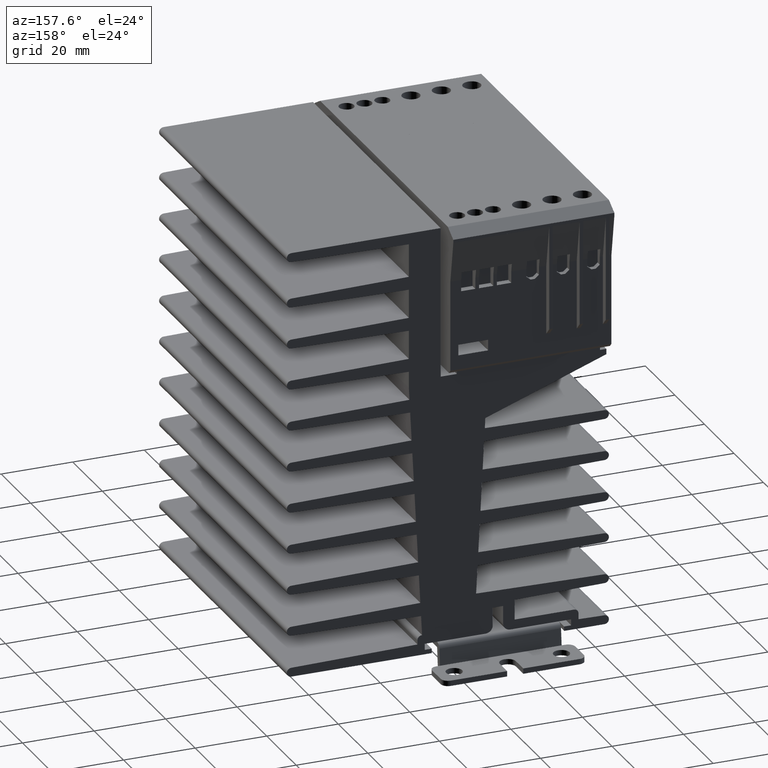
[diagram: clean part render]
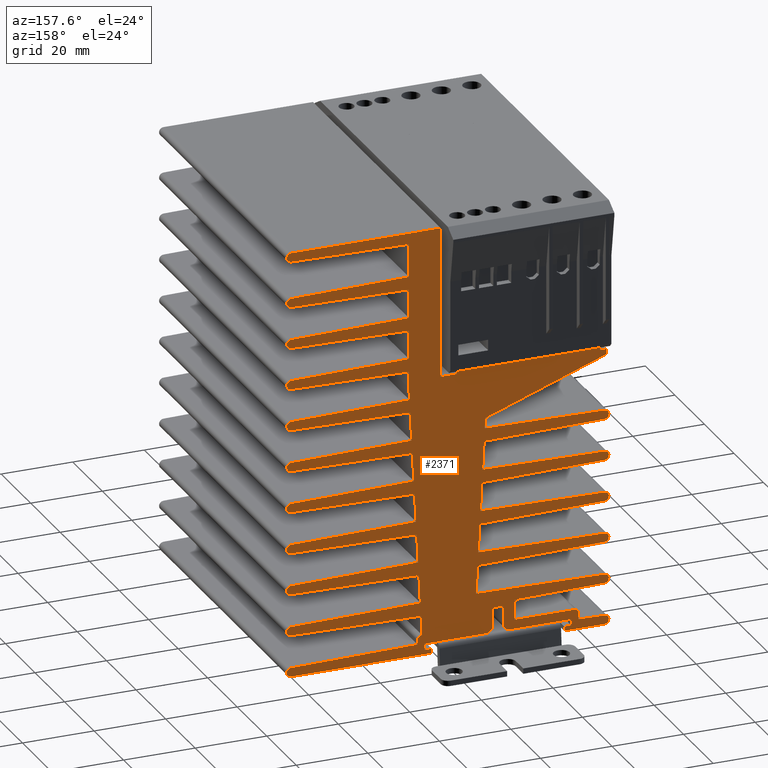
[diagram: same view with one face highlighted and labeled with its STEP entity id]
A machine part, auxiliary view. The second image highlights one B-rep face of the part: STEP entity #2371.
In plain terms, the highlighted planar face has unit normal (0, 1, 0).
Its self-contained STEP definition (entity closure, byte-faithful):
#7 = ORIENTED_EDGE ( 'NONE', *, *, #124, .F. ) ;
#12 = EDGE_CURVE ( 'NONE', #74, #13512, #8347, .T. ) ;
#66 = CARTESIAN_POINT ( 'NONE',  ( 1.252439988956242312, 1.704724409448818978, -1.297295604719318929 ) ) ;
#68 = CARTESIAN_POINT ( 'NONE',  ( -0.8366141732283465249, 1.704724409448818978, -0.7677165354330708347 ) ) ;
#74 = VERTEX_POINT ( 'NONE', #9982 ) ;
#79 = EDGE_CURVE ( 'NONE', #11851, #5127, #14053, .T. ) ;
#114 = DIRECTION ( 'NONE',  ( 1.000000000000000000, 0.000000000000000000, 0.000000000000000000 ) ) ;
#124 = EDGE_CURVE ( 'NONE', #1903, #3368, #3008, .T. ) ;
#132 = DIRECTION ( 'NONE',  ( 0.05233595624294399423, 0.000000000000000000, 0.9986295347545738332 ) ) ;
#204 = LINE ( 'NONE', #7888, #4513 ) ;
#226 = LINE ( 'NONE', #10785, #7547 ) ;
#249 = CARTESIAN_POINT ( 'NONE',  ( -0.7874015748031496509, 1.704724409448818978, -8.236254873970098290E-17 ) ) ;
#274 = ORIENTED_EDGE ( 'NONE', *, *, #5914, .F. ) ;
#291 = EDGE_CURVE ( 'NONE', #5926, #11945, #1397, .T. ) ;
#296 = AXIS2_PLACEMENT_3D ( 'NONE', #2073, #10631, #6410 ) ;
#310 = EDGE_CURVE ( 'NONE', #7832, #7668, #13555, .T. ) ;
#311 = EDGE_CURVE ( 'NONE', #999, #9655, #3678, .T. ) ;
#313 = ORIENTED_EDGE ( 'NONE', *, *, #311, .F. ) ;
#315 = CARTESIAN_POINT ( 'NONE',  ( 1.139763779527559029, 1.704724409448818978, -0.7581509940322579411 ) ) ;
#320 = CARTESIAN_POINT ( 'NONE',  ( 0.7657480314960629642, 1.704724409448818978, -0.6905271042270414439 ) ) ;
#325 = ORIENTED_EDGE ( 'NONE', *, *, #13407, .T. ) ;
#348 = CARTESIAN_POINT ( 'NONE',  ( -0.8374730514978977469, 1.704724409448818978, -0.7185114323249803814 ) ) ;
#362 = VERTEX_POINT ( 'NONE', #3979 ) ;
#377 = LINE ( 'NONE', #13423, #4142 ) ;
#388 = EDGE_CURVE ( 'NONE', #7668, #3161, #9363, .T. ) ;
#390 = EDGE_CURVE ( 'NONE', #8518, #10667, #1918, .T. ) ;
#401 = DIRECTION ( 'NONE',  ( 0.000000000000000000, 0.000000000000000000, -1.000000000000000000 ) ) ;
#432 = ORIENTED_EDGE ( 'NONE', *, *, #13729, .F. ) ;
#449 = CARTESIAN_POINT ( 'NONE',  ( 1.062992125984252079, 1.704724409448818978, -3.100393700787401841 ) ) ;
#455 = DIRECTION ( 'NONE',  ( 0.9998476951563912696, 0.000000000000000000, 0.01745240643728300511 ) ) ;
#456 = ORIENTED_EDGE ( 'NONE', *, *, #6217, .T. ) ;
#469 = CARTESIAN_POINT ( 'NONE',  ( 2.609126594804984212, 1.704724409448818978, -1.175204345710807008 ) ) ;
#514 = VERTEX_POINT ( 'NONE', #66 ) ;
#515 = AXIS2_PLACEMENT_3D ( 'NONE', #9387, #765, #13884 ) ;
#572 = ORIENTED_EDGE ( 'NONE', *, *, #9872, .F. ) ;
#639 = DIRECTION ( 'NONE',  ( -1.000000000000000000, 0.000000000000000000, 0.000000000000000000 ) ) ;
#667 = CARTESIAN_POINT ( 'NONE',  ( -0.8374730514978977469, 1.704724409448818978, -2.187000378698641612 ) ) ;
#681 = EDGE_CURVE ( 'NONE', #3161, #362, #2546, .T. ) ;
#698 = VECTOR ( 'NONE', #3703, 39.37007874015748854 ) ;
#710 = CARTESIAN_POINT ( 'NONE',  ( 2.609126594804984212, 1.704724409448818978, -0.3602287251553331071 ) ) ;
#721 = VECTOR ( 'NONE', #12270, 39.37007874015748143 ) ;
#722 = ORIENTED_EDGE ( 'NONE', *, *, #4821, .F. ) ;
#738 = EDGE_CURVE ( 'NONE', #12546, #1558, #6640, .T. ) ;
#762 = LINE ( 'NONE', #7519, #8127 ) ;
#765 = DIRECTION ( 'NONE',  ( -0.000000000000000000, -1.000000000000000000, -0.000000000000000000 ) ) ;
#779 = CARTESIAN_POINT ( 'NONE',  ( 2.608267716535433323, 1.704724409448818978, -1.681102362204724532 ) ) ;
#807 = VERTEX_POINT ( 'NONE', #3173 ) ;
#809 = VERTEX_POINT ( 'NONE', #10675 ) ;
#814 = EDGE_CURVE ( 'NONE', #1843, #3648, #11146, .T. ) ;
#822 = ORIENTED_EDGE ( 'NONE', *, *, #9463, .F. ) ;
#825 = ORIENTED_EDGE ( 'NONE', *, *, #1716, .T. ) ;
#833 = DIRECTION ( 'NONE',  ( 0.05233595624294399423, 0.000000000000000000, -0.9986295347545738332 ) ) ;
#840 = VERTEX_POINT ( 'NONE', #4492 ) ;
#841 = EDGE_CURVE ( 'NONE', #8518, #5127, #1289, .T. ) ;
#893 = EDGE_CURVE ( 'NONE', #12748, #809, #226, .T. ) ;
#908 = ORIENTED_EDGE ( 'NONE', *, *, #5056, .F. ) ;
#933 = CARTESIAN_POINT ( 'NONE',  ( 0.5349089800480173462, 1.704724409448818978, -1.754262482779771481 ) ) ;
#968 = CIRCLE ( 'NONE', #3927, 0.04921259842519686012 ) ;
#989 = DIRECTION ( 'NONE',  ( 0.000000000000000000, 0.000000000000000000, -1.000000000000000000 ) ) ;
#997 = EDGE_CURVE ( 'NONE', #4551, #10103, #3846, .T. ) ;
#999 = VERTEX_POINT ( 'NONE', #1780 ) ;
#1010 = DIRECTION ( 'NONE',  ( -0.9998476951563912696, 0.000000000000000000, -0.01745240643727900484 ) ) ;
#1013 = CARTESIAN_POINT ( 'NONE',  ( 0.5033352827647064043, 1.704724409448818978, -1.151800449179964492 ) ) ;
#1023 = LINE ( 'NONE', #5360, #5356 ) ;
#1038 = PLANE ( 'NONE',  #2172 ) ;
#1042 = CARTESIAN_POINT ( 'NONE',  ( 1.139763779527559029, 1.704724409448818978, -3.051181102362204633 ) ) ;
#1057 = DIRECTION ( 'NONE',  ( -0.9998476951563912696, 0.000000000000000000, -0.01745240643727900484 ) ) ;
#1081 = EDGE_CURVE ( 'NONE', #10527, #12207, #5119, .T. ) ;
#1082 = LINE ( 'NONE', #7632, #1381 ) ;
#1086 = EDGE_CURVE ( 'NONE', #5178, #4321, #10691, .T. ) ;
#1135 = DIRECTION ( 'NONE',  ( 0.000000000000000000, -1.000000000000000000, 0.000000000000000000 ) ) ;
#1167 = VERTEX_POINT ( 'NONE', #1255 ) ;
#1172 = ORIENTED_EDGE ( 'NONE', *, *, #6489, .F. ) ;
#1173 = DIRECTION ( 'NONE',  ( 0.000000000000000000, 0.000000000000000000, -1.000000000000000000 ) ) ;
#1195 = VECTOR ( 'NONE', #10136, 39.37007874015748143 ) ;
#1201 = DIRECTION ( 'NONE',  ( -0.9998476951563912696, 0.000000000000000000, 0.01745240643728400431 ) ) ;
#1216 = VERTEX_POINT ( 'NONE', #14093 ) ;
#1218 = DIRECTION ( 'NONE',  ( -1.000000000000000000, 0.000000000000000000, 0.000000000000000000 ) ) ;
#1222 = CARTESIAN_POINT ( 'NONE',  ( 1.062992125984252079, 1.704724409448818978, -3.051181102362204633 ) ) ;
#1224 = CIRCLE ( 'NONE', #8962, 0.04921259842519689481 ) ;
#1237 = DIRECTION ( 'NONE',  ( 0.000000000000000000, 0.000000000000000000, 1.000000000000000000 ) ) ;
#1250 = VERTEX_POINT ( 'NONE', #3461 ) ;
#1255 = CARTESIAN_POINT ( 'NONE',  ( -0.3937007874015748254, 1.704724409448818978, -3.051181102362204633 ) ) ;
#1259 = LINE ( 'NONE', #14097, #2305 ) ;
#1289 = LINE ( 'NONE', #7699, #13713 ) ;
#1300 = VERTEX_POINT ( 'NONE', #12133 ) ;
#1303 = CIRCLE ( 'NONE', #8358, 0.04921259842519689481 ) ;
#1306 = CARTESIAN_POINT ( 'NONE',  ( 2.608267716535433323, 1.704724409448818978, 0.1456692913385826960 ) ) ;
#1314 = VERTEX_POINT ( 'NONE', #5783 ) ;
#1315 = LINE ( 'NONE', #12301, #11200 ) ;
#1354 = DIRECTION ( 'NONE',  ( 0.05233595624294399423, 0.000000000000000000, -0.9986295347545738332 ) ) ;
#1373 = CARTESIAN_POINT ( 'NONE',  ( 1.314960629921259949, 1.704724409448818978, 0.2174641453916082989 ) ) ;
#1381 = VECTOR ( 'NONE', #13134, 39.37007874015748143 ) ;
#1396 = DIRECTION ( 'NONE',  ( -0.9998476951563912696, 0.000000000000000000, -0.01745240643727800564 ) ) ;
#1397 = CIRCLE ( 'NONE', #7312, 0.07874015748031502893 ) ;
#1409 = EDGE_CURVE ( 'NONE', #8111, #2981, #11206, .T. ) ;
#1418 = ORIENTED_EDGE ( 'NONE', *, *, #841, .T. ) ;
#1429 = CARTESIAN_POINT ( 'NONE',  ( -0.8366141732283465249, 1.704724409448818978, -2.594488188976378229 ) ) ;
#1430 = CARTESIAN_POINT ( 'NONE',  ( 0.4704724409448819422, 1.704724409448818978, -2.905511811023622215 ) ) ;
#1454 = DIRECTION ( 'NONE',  ( 0.05233595624294399423, 0.000000000000000000, 0.9986295347545738332 ) ) ;
#1473 = EDGE_CURVE ( 'NONE', #6554, #1843, #9457, .T. ) ;
#1478 = LINE ( 'NONE', #13390, #11914 ) ;
#1534 = CIRCLE ( 'NONE', #9496, 0.04921259842519686012 ) ;
#1545 = VERTEX_POINT ( 'NONE', #1013 ) ;
#1558 = VERTEX_POINT ( 'NONE', #8424 ) ;
#1577 = ORIENTED_EDGE ( 'NONE', *, *, #4021, .F. ) ;
#1584 = ORIENTED_EDGE ( 'NONE', *, *, #9689, .F. ) ;
#1590 = CARTESIAN_POINT ( 'NONE',  ( 1.169394928015017765, 1.704724409448818978, -2.881889763779527769 ) ) ;
#1629 = DIRECTION ( 'NONE',  ( 0.000000000000000000, 0.000000000000000000, -1.000000000000000000 ) ) ;
#1670 = EDGE_CURVE ( 'NONE', #7237, #5981, #8074, .T. ) ;
#1698 = VERTEX_POINT ( 'NONE', #8352 ) ;
#1708 = DIRECTION ( 'NONE',  ( 0.000000000000000000, -1.000000000000000000, 0.000000000000000000 ) ) ;
#1716 = EDGE_CURVE ( 'NONE', #8341, #10791, #9216, .T. ) ;
#1734 = DIRECTION ( 'NONE',  ( -0.9998476951563912696, 0.000000000000000000, 0.01745240643728300511 ) ) ;
#1741 = ORIENTED_EDGE ( 'NONE', *, *, #1081, .F. ) ;
#1752 = DIRECTION ( 'NONE',  ( 0.9998476951563911586, 0.000000000000000000, -0.01745240643728800112 ) ) ;
#1768 = VERTEX_POINT ( 'NONE', #7447 ) ;
#1780 = CARTESIAN_POINT ( 'NONE',  ( -0.5019685039370078705, 1.704724409448818978, -2.881889763779527769 ) ) ;
#1811 = EDGE_CURVE ( 'NONE', #1216, #1250, #4318, .T. ) ;
#1831 = CARTESIAN_POINT ( 'NONE',  ( 2.609126594804984212, 1.704724409448818978, -1.730307465312812987 ) ) ;
#1843 = VERTEX_POINT ( 'NONE', #1919 ) ;
#1860 = VECTOR ( 'NONE', #9076, 39.37007874015748143 ) ;
#1876 = VECTOR ( 'NONE', #8416, 39.37007874015748143 ) ;
#1902 = ORIENTED_EDGE ( 'NONE', *, *, #9339, .T. ) ;
#1903 = VERTEX_POINT ( 'NONE', #4134 ) ;
#1918 = LINE ( 'NONE', #6250, #6617 ) ;
#1919 = CARTESIAN_POINT ( 'NONE',  ( 0.4794228959615117747, 1.704724409448818978, -0.6955249280583759575 ) ) ;
#1946 = VERTEX_POINT ( 'NONE', #933 ) ;
#1948 = VERTEX_POINT ( 'NONE', #6549 ) ;
#1964 = EDGE_CURVE ( 'NONE', #9435, #13647, #6483, .T. ) ;
#1982 = ORIENTED_EDGE ( 'NONE', *, *, #9838, .F. ) ;
#1992 = DIRECTION ( 'NONE',  ( -1.000000000000000000, 0.000000000000000000, 0.000000000000000000 ) ) ;
#2013 = CARTESIAN_POINT ( 'NONE',  ( 0.1475173550843781600, 1.704724409448818978, -2.617756568674689088 ) ) ;
#2032 = VERTEX_POINT ( 'NONE', #6763 ) ;
#2051 = ORIENTED_EDGE ( 'NONE', *, *, #3758, .F. ) ;
#2067 = EDGE_CURVE ( 'NONE', #809, #6375, #5563, .T. ) ;
#2073 = CARTESIAN_POINT ( 'NONE',  ( 2.608267716535433323, 1.704724409448818978, -0.7677165354330708347 ) ) ;
#2075 = CARTESIAN_POINT ( 'NONE',  ( -0.8366141732283465249, 1.704724409448818978, -1.681102362204724532 ) ) ;
#2098 = LINE ( 'NONE', #6435, #6779 ) ;
#2103 = ORIENTED_EDGE ( 'NONE', *, *, #8644, .F. ) ;
#2172 = AXIS2_PLACEMENT_3D ( 'NONE', #7586, #2250, #10881 ) ;
#2175 = VERTEX_POINT ( 'NONE', #13624 ) ;
#2209 = DIRECTION ( 'NONE',  ( 0.000000000000000000, 0.000000000000000000, -1.000000000000000000 ) ) ;
#2250 = DIRECTION ( 'NONE',  ( 0.000000000000000000, 1.000000000000000000, 0.000000000000000000 ) ) ;
#2256 = CARTESIAN_POINT ( 'NONE',  ( -0.3937007874015748254, 1.704724409448818978, -3.100393700787401841 ) ) ;
#2305 = VECTOR ( 'NONE', #11029, 39.37007874015748854 ) ;
#2341 = LINE ( 'NONE', #4332, #2367 ) ;
#2367 = VECTOR ( 'NONE', #8751, 39.37007874015748854 ) ;
#2371 = ADVANCED_FACE ( 'NONE', ( #10812 ), #1038, .T. ) ;
#2378 = CARTESIAN_POINT ( 'NONE',  ( 1.169394928015017765, 1.704724409448818978, -2.881889763779527769 ) ) ;
#2380 = DIRECTION ( 'NONE',  ( -1.000000000000000000, 0.000000000000000000, 0.000000000000000000 ) ) ;
#2411 = DIRECTION ( 'NONE',  ( 0.000000000000000000, 0.000000000000000000, -1.000000000000000000 ) ) ;
#2439 = ORIENTED_EDGE ( 'NONE', *, *, #13051, .T. ) ;
#2446 = VERTEX_POINT ( 'NONE', #11301 ) ;
#2451 = CARTESIAN_POINT ( 'NONE',  ( 0.4704724409448819422, 1.704724409448818978, -2.984251968503937480 ) ) ;
#2471 = CARTESIAN_POINT ( 'NONE',  ( 1.314960629921259949, 1.704724409448818978, -0.1043307086614173318 ) ) ;
#2481 = CARTESIAN_POINT ( 'NONE',  ( 0.1988188976377952832, 1.704724409448818978, -2.905511811023622215 ) ) ;
#2486 = ORIENTED_EDGE ( 'NONE', *, *, #13969, .F. ) ;
#2500 = ORIENTED_EDGE ( 'NONE', *, *, #5245, .F. ) ;
#2527 = EDGE_CURVE ( 'NONE', #13403, #999, #11155, .T. ) ;
#2529 = LINE ( 'NONE', #13092, #12945 ) ;
#2546 = LINE ( 'NONE', #6894, #9599 ) ;
#2560 = ORIENTED_EDGE ( 'NONE', *, *, #10714, .F. ) ;
#2561 = LINE ( 'NONE', #5774, #8941 ) ;
#2585 = LINE ( 'NONE', #10219, #13790 ) ;
#2648 = ORIENTED_EDGE ( 'NONE', *, *, #12711, .F. ) ;
#2666 = DIRECTION ( 'NONE',  ( -0.9998476951563912696, 0.000000000000000000, 0.01745240643728400431 ) ) ;
#2667 = CARTESIAN_POINT ( 'NONE',  ( 0.3917322834645669549, 1.704724409448818978, -2.708661417322834719 ) ) ;
#2677 = ORIENTED_EDGE ( 'NONE', *, *, #79, .F. ) ;
#2679 = VERTEX_POINT ( 'NONE', #6639 ) ;
#2691 = CIRCLE ( 'NONE', #4942, 0.04921259842519689481 ) ;
#2693 = VERTEX_POINT ( 'NONE', #8856 ) ;
#2694 = LINE ( 'NONE', #3555, #12090 ) ;
#2711 = CIRCLE ( 'NONE', #9313, 0.04921259842519689481 ) ;
#2727 = CARTESIAN_POINT ( 'NONE',  ( -0.8366141732283465249, 1.704724409448818978, -2.137795275590551380 ) ) ;
#2729 = LINE ( 'NONE', #9287, #10260 ) ;
#2753 = EDGE_CURVE ( 'NONE', #6393, #4321, #1023, .T. ) ;
#2774 = CARTESIAN_POINT ( 'NONE',  ( -0.8374730514978977469, 1.704724409448818978, -1.730307465312812987 ) ) ;
#2787 = CIRCLE ( 'NONE', #296, 0.04921259842519689481 ) ;
#2797 = VECTOR ( 'NONE', #9747, 39.37007874015748143 ) ;
#2834 = AXIS2_PLACEMENT_3D ( 'NONE', #1429, #4630, #10983 ) ;
#2884 = ORIENTED_EDGE ( 'NONE', *, *, #10002, .F. ) ;
#2907 = EDGE_CURVE ( 'NONE', #1768, #1300, #2585, .T. ) ;
#2947 = ORIENTED_EDGE ( 'NONE', *, *, #14047, .F. ) ;
#2981 = VERTEX_POINT ( 'NONE', #8209 ) ;
#2991 = AXIS2_PLACEMENT_3D ( 'NONE', #3162, #8791, #12086 ) ;
#3008 = CIRCLE ( 'NONE', #10762, 0.04921259842519689481 ) ;
#3017 = LINE ( 'NONE', #7434, #13865 ) ;
#3030 = CARTESIAN_POINT ( 'NONE',  ( 2.609126594804984212, 1.704724409448818978, 0.09646418823049350555 ) ) ;
#3037 = ORIENTED_EDGE ( 'NONE', *, *, #4743, .F. ) ;
#3085 = CARTESIAN_POINT ( 'NONE',  ( -0.8582677165354331006, 1.704724409448818978, -0.09842519685039370636 ) ) ;
#3091 = CARTESIAN_POINT ( 'NONE',  ( -0.8374730514978977469, 1.704724409448818978, -1.730307465312812987 ) ) ;
#3096 = DIRECTION ( 'NONE',  ( -0.9998476951563912696, 0.000000000000000000, 0.01745240643728400431 ) ) ;
#3097 = DIRECTION ( 'NONE',  ( -0.9998476951563912696, 0.000000000000000000, -0.01745240643727900484 ) ) ;
#3139 = CARTESIAN_POINT ( 'NONE',  ( 0.9645669291338583307, 1.704724409448818978, -1.759013361055431046 ) ) ;
#3161 = VERTEX_POINT ( 'NONE', #8696 ) ;
#3162 = CARTESIAN_POINT ( 'NONE',  ( 2.608267716535433323, 1.704724409448818978, -1.224409448818897683 ) ) ;
#3173 = CARTESIAN_POINT ( 'NONE',  ( 1.283984996723783523, 1.704724409448818978, -0.6953809996913896674 ) ) ;
#3186 = ORIENTED_EDGE ( 'NONE', *, *, #681, .F. ) ;
#3257 = CARTESIAN_POINT ( 'NONE',  ( 1.169394928015017765, 1.704724409448818978, -2.881889763779527769 ) ) ;
#3268 = DIRECTION ( 'NONE',  ( 0.000000000000000000, 0.000000000000000000, 1.000000000000000000 ) ) ;
#3339 = CARTESIAN_POINT ( 'NONE',  ( 0.2775590551181102428, 1.704724409448818978, -2.905511811023622215 ) ) ;
#3347 = CARTESIAN_POINT ( 'NONE',  ( 0.9645669291338583307, 1.704724409448818978, -0.03937007874015747977 ) ) ;
#3368 = VERTEX_POINT ( 'NONE', #2774 ) ;
#3401 = CARTESIAN_POINT ( 'NONE',  ( 2.609126594804984212, 1.704724409448818978, -1.631897259096634079 ) ) ;
#3453 = VECTOR ( 'NONE', #8151, 39.37007874015748143 ) ;
#3461 = CARTESIAN_POINT ( 'NONE',  ( 2.609126594804984212, 1.704724409448818978, 1.009850015002147661 ) ) ;
#3468 = VERTEX_POINT ( 'NONE', #11688 ) ;
#3505 = EDGE_LOOP ( 'NONE', ( #12427, #12737, #3037, #7621, #5309, #2500, #9212, #12083, #13890, #1577, #1982, #4188, #822, #9663, #13701, #5905, #5110, #13744, #4587, #11011, #12209, #4962, #2884, #13726, #2051, #2486, #12958, #2560, #3186, #13278, #11346, #8380, #13822, #6367, #8989, #12279, #2439, #908, #825, #8396, #5326, #8042, #12126, #7902, #325, #10065, #6975, #1172, #9784, #2103, #572, #9980, #456, #7672, #13222, #432, #6244, #7854, #8256, #313, #13842, #5023, #6097, #4465, #3924, #2648, #10231, #5765, #8765, #3909, #11101, #7, #4695, #12363, #6954, #10438, #274, #13981, #2947, #722, #9903, #4800, #9258, #3988, #5472, #1902, #13864, #1418, #2677, #13119, #1741, #9203, #6993, #9800, #1584 ) ) ;
#3516 = EDGE_CURVE ( 'NONE', #12207, #11851, #4329, .T. ) ;
#3555 = CARTESIAN_POINT ( 'NONE',  ( 0.9645669291338583307, 1.704724409448818978, -2.672399187827082745 ) ) ;
#3580 = EDGE_CURVE ( 'NONE', #3468, #13404, #12439, .T. ) ;
#3621 = VECTOR ( 'NONE', #1454, 39.37007874015748143 ) ;
#3624 = CARTESIAN_POINT ( 'NONE',  ( 0.5272476695679015890, 1.704724409448818978, -1.608075970301553248 ) ) ;
#3628 = CARTESIAN_POINT ( 'NONE',  ( -0.8374730514978977469, 1.704724409448818978, -2.643693292084468460 ) ) ;
#3648 = VERTEX_POINT ( 'NONE', #348 ) ;
#3658 = DIRECTION ( 'NONE',  ( 0.000000000000000000, 0.000000000000000000, -1.000000000000000000 ) ) ;
#3678 = CIRCLE ( 'NONE', #10049, 0.04921259842519689481 ) ;
#3694 = DIRECTION ( 'NONE',  ( -0.9998476951563912696, 0.000000000000000000, 0.01745240643728400431 ) ) ;
#3703 = DIRECTION ( 'NONE',  ( 0.9998476951563911586, 0.000000000000000000, -0.01745240643728800112 ) ) ;
#3733 = LINE ( 'NONE', #11501, #7967 ) ;
#3746 = CARTESIAN_POINT ( 'NONE',  ( 1.204527636828033321, 1.704724409448818978, -2.211517744708236144 ) ) ;
#3758 = EDGE_CURVE ( 'NONE', #5999, #5556, #10181, .T. ) ;
#3846 = LINE ( 'NONE', #710, #4830 ) ;
#3869 = EDGE_CURVE ( 'NONE', #13404, #10791, #4897, .T. ) ;
#3909 = ORIENTED_EDGE ( 'NONE', *, *, #7614, .F. ) ;
#3924 = ORIENTED_EDGE ( 'NONE', *, *, #893, .F. ) ;
#3927 = AXIS2_PLACEMENT_3D ( 'NONE', #9995, #8925, #13286 ) ;
#3941 = CARTESIAN_POINT ( 'NONE',  ( 1.169394928015017765, 1.704724409448818978, -2.881889763779527769 ) ) ;
#3952 = CARTESIAN_POINT ( 'NONE',  ( 1.180571460763929270, 1.704724409448818978, -2.668628814702692864 ) ) ;
#3966 = CARTESIAN_POINT ( 'NONE',  ( -0.8374730514978977469, 1.704724409448818978, -1.273614551926986360 ) ) ;
#3979 = CARTESIAN_POINT ( 'NONE',  ( 1.212247836314200855, 1.704724409448818978, -2.064207563056153827 ) ) ;
#3988 = ORIENTED_EDGE ( 'NONE', *, *, #9019, .T. ) ;
#4021 = EDGE_CURVE ( 'NONE', #1314, #5096, #8452, .T. ) ;
#4034 = CARTESIAN_POINT ( 'NONE',  ( 0.4735341752582031272, 1.704724409448818978, -0.5831614434026968219 ) ) ;
#4047 = CARTESIAN_POINT ( 'NONE',  ( 2.608267716535433323, 1.704724409448818978, -2.137795275590551380 ) ) ;
#4107 = DIRECTION ( 'NONE',  ( 0.9998476951563912696, 0.000000000000000000, 0.01745240643728300511 ) ) ;
#4108 = VECTOR ( 'NONE', #2209, 39.37007874015748143 ) ;
#4134 = CARTESIAN_POINT ( 'NONE',  ( -0.8374730514978977469, 1.704724409448818978, -1.631897259096634079 ) ) ;
#4142 = VECTOR ( 'NONE', #11212, 39.37007874015748143 ) ;
#4144 = LINE ( 'NONE', #2013, #12740 ) ;
#4188 = ORIENTED_EDGE ( 'NONE', *, *, #12415, .F. ) ;
#4195 = VECTOR ( 'NONE', #9629, 39.37007874015748854 ) ;
#4196 = DIRECTION ( 'NONE',  ( 0.000000000000000000, 0.000000000000000000, 1.000000000000000000 ) ) ;
#4219 = CARTESIAN_POINT ( 'NONE',  ( 0.9645669291338583307, 1.704724409448818978, 1.614173228346456712 ) ) ;
#4241 = CARTESIAN_POINT ( 'NONE',  ( 2.608267716535433323, 1.704724409448818978, 1.059055118110236338 ) ) ;
#4296 = CARTESIAN_POINT ( 'NONE',  ( -0.8366141732283465249, 1.704724409448818978, -3.100393700787401841 ) ) ;
#4318 = LINE ( 'NONE', #4394, #9623 ) ;
#4321 = VERTEX_POINT ( 'NONE', #1222 ) ;
#4329 = LINE ( 'NONE', #8748, #9012 ) ;
#4332 = CARTESIAN_POINT ( 'NONE',  ( -0.8374730514978977469, 1.704724409448818978, -0.8169216385411594006 ) ) ;
#4360 = AXIS2_PLACEMENT_3D ( 'NONE', #7797, #5514, #1173 ) ;
#4370 = LINE ( 'NONE', #4296, #13757 ) ;
#4376 = VECTOR ( 'NONE', #13692, 39.37007874015748143 ) ;
#4392 = DIRECTION ( 'NONE',  ( 0.05233595624294399423, 0.000000000000000000, -0.9986295347545738332 ) ) ;
#4394 = CARTESIAN_POINT ( 'NONE',  ( 2.609126594804984212, 1.704724409448818978, 1.009850015002147661 ) ) ;
#4398 = DIRECTION ( 'NONE',  ( 0.000000000000000000, 0.000000000000000000, -1.000000000000000000 ) ) ;
#4409 = DIRECTION ( 'NONE',  ( 0.000000000000000000, 0.000000000000000000, -1.000000000000000000 ) ) ;
#4415 = VECTOR ( 'NONE', #2666, 39.37007874015748143 ) ;
#4441 = LINE ( 'NONE', #13150, #5226 ) ;
#4465 = ORIENTED_EDGE ( 'NONE', *, *, #2067, .F. ) ;
#4492 = CARTESIAN_POINT ( 'NONE',  ( 1.171259842519684957, 1.704724409448818978, -2.881889763779527769 ) ) ;
#4501 = CARTESIAN_POINT ( 'NONE',  ( 2.609126594804984212, 1.704724409448818978, -2.643693292084468460 ) ) ;
#4513 = VECTOR ( 'NONE', #132, 39.37007874015748143 ) ;
#4535 = LINE ( 'NONE', #11034, #13741 ) ;
#4551 = VERTEX_POINT ( 'NONE', #6981 ) ;
#4587 = ORIENTED_EDGE ( 'NONE', *, *, #1409, .F. ) ;
#4621 = CARTESIAN_POINT ( 'NONE',  ( 1.228483812892137816, 1.704724409448818978, -1.754406674713775649 ) ) ;
#4630 = DIRECTION ( 'NONE',  ( 0.000000000000000000, -1.000000000000000000, 0.000000000000000000 ) ) ;
#4646 = DIRECTION ( 'NONE',  ( 1.000000000000000000, 0.000000000000000000, 0.000000000000000000 ) ) ;
#4695 = ORIENTED_EDGE ( 'NONE', *, *, #10057, .F. ) ;
#4712 = VERTEX_POINT ( 'NONE', #11481 ) ;
#4715 = LINE ( 'NONE', #5715, #13042 ) ;
#4743 = EDGE_CURVE ( 'NONE', #11401, #1216, #13110, .T. ) ;
#4744 = LINE ( 'NONE', #2667, #7448 ) ;
#4769 = VECTOR ( 'NONE', #4196, 39.37007874015748143 ) ;
#4797 = DIRECTION ( 'NONE',  ( 0.05233595624294399423, 0.000000000000000000, -0.9986295347545738332 ) ) ;
#4800 = ORIENTED_EDGE ( 'NONE', *, *, #1473, .F. ) ;
#4821 = EDGE_CURVE ( 'NONE', #3648, #10453, #1303, .T. ) ;
#4830 = VECTOR ( 'NONE', #4918, 39.37007874015748143 ) ;
#4897 = LINE ( 'NONE', #13675, #13122 ) ;
#4918 = DIRECTION ( 'NONE',  ( 0.9998476951563912696, 0.000000000000000000, 0.01745240643728400431 ) ) ;
#4925 = VERTEX_POINT ( 'NONE', #9966 ) ;
#4942 = AXIS2_PLACEMENT_3D ( 'NONE', #4241, #6237, #13024 ) ;
#4962 = ORIENTED_EDGE ( 'NONE', *, *, #11795, .F. ) ;
#5012 = VERTEX_POINT ( 'NONE', #6038 ) ;
#5023 = ORIENTED_EDGE ( 'NONE', *, *, #8369, .F. ) ;
#5033 = DIRECTION ( 'NONE',  ( 0.000000000000000000, 0.000000000000000000, -1.000000000000000000 ) ) ;
#5043 = VERTEX_POINT ( 'NONE', #10536 ) ;
#5056 = EDGE_CURVE ( 'NONE', #8341, #840, #5621, .T. ) ;
#5064 = CARTESIAN_POINT ( 'NONE',  ( 1.169394928015017765, 1.704724409448818978, -2.881889763779527769 ) ) ;
#5079 = LINE ( 'NONE', #3941, #3453 ) ;
#5092 = DIRECTION ( 'NONE',  ( -0.000000000000000000, -0.000000000000000000, 1.000000000000000000 ) ) ;
#5096 = VERTEX_POINT ( 'NONE', #5104 ) ;
#5104 = CARTESIAN_POINT ( 'NONE',  ( 2.609126594804984212, 1.704724409448818978, 0.09646418823049350555 ) ) ;
#5107 = VERTEX_POINT ( 'NONE', #1831 ) ;
#5110 = ORIENTED_EDGE ( 'NONE', *, *, #6290, .F. ) ;
#5119 = LINE ( 'NONE', #6254, #10759 ) ;
#5127 = VERTEX_POINT ( 'NONE', #6240 ) ;
#5178 = VERTEX_POINT ( 'NONE', #1042 ) ;
#5226 = VECTOR ( 'NONE', #7718, 39.37007874015748143 ) ;
#5234 = CARTESIAN_POINT ( 'NONE',  ( -0.8374730514978977469, 1.704724409448818978, -1.273614551926986360 ) ) ;
#5245 = EDGE_CURVE ( 'NONE', #6480, #12546, #13885, .T. ) ;
#5253 = CARTESIAN_POINT ( 'NONE',  ( -0.7874015748031496509, 1.704724409448818978, -0.03937007874015747977 ) ) ;
#5276 = CARTESIAN_POINT ( 'NONE',  ( -0.8374730514978977469, 1.704724409448818978, -2.187000378698641612 ) ) ;
#5277 = DIRECTION ( 'NONE',  ( -0.9998476951563912696, 0.000000000000000000, 0.01745240643728300511 ) ) ;
#5309 = ORIENTED_EDGE ( 'NONE', *, *, #738, .F. ) ;
#5326 = ORIENTED_EDGE ( 'NONE', *, *, #3580, .F. ) ;
#5356 = VECTOR ( 'NONE', #7711, 39.37007874015748143 ) ;
#5360 = CARTESIAN_POINT ( 'NONE',  ( 1.062992125984252079, 1.704724409448818978, -0.7581509940322579411 ) ) ;
#5394 = CARTESIAN_POINT ( 'NONE',  ( 0.7657480314960629642, 1.704724409448818978, -2.060605844384519436 ) ) ;
#5436 = CARTESIAN_POINT ( 'NONE',  ( 2.609126594804984212, 1.704724409448818978, -2.545283085868287110 ) ) ;
#5462 = VERTEX_POINT ( 'NONE', #13593 ) ;
#5470 = VECTOR ( 'NONE', #4107, 39.37007874015748143 ) ;
#5472 = ORIENTED_EDGE ( 'NONE', *, *, #11826, .F. ) ;
#5514 = DIRECTION ( 'NONE',  ( 0.000000000000000000, -1.000000000000000000, 0.000000000000000000 ) ) ;
#5530 = CARTESIAN_POINT ( 'NONE',  ( 0.3917322834645669549, 1.704724409448818978, -2.708661417322834719 ) ) ;
#5549 = LINE ( 'NONE', #13257, #4108 ) ;
#5553 = VERTEX_POINT ( 'NONE', #3952 ) ;
#5556 = VERTEX_POINT ( 'NONE', #11373 ) ;
#5563 = CIRCLE ( 'NONE', #2834, 0.04921259842519689481 ) ;
#5571 = VECTOR ( 'NONE', #13371, 39.37007874015748143 ) ;
#5583 = VERTEX_POINT ( 'NONE', #5949 ) ;
#5606 = DIRECTION ( 'NONE',  ( 1.000000000000000000, -0.000000000000000000, -0.000000000000000000 ) ) ;
#5621 = CIRCLE ( 'NONE', #9268, 0.04921259842519689481 ) ;
#5639 = CARTESIAN_POINT ( 'NONE',  ( -0.5511811023622047445, 1.704724409448818978, -2.931102362204724532 ) ) ;
#5644 = LINE ( 'NONE', #449, #6188 ) ;
#5651 = EDGE_CURVE ( 'NONE', #1167, #2693, #2098, .T. ) ;
#5700 = DIRECTION ( 'NONE',  ( 0.000000000000000000, 0.000000000000000000, -1.000000000000000000 ) ) ;
#5715 = CARTESIAN_POINT ( 'NONE',  ( 1.275590551181102317, 1.704724409448818978, 0.6748442660580729058 ) ) ;
#5719 = CARTESIAN_POINT ( 'NONE',  ( 1.314960629921259949, 1.704724409448818978, -0.1043307086614173318 ) ) ;
#5735 = CARTESIAN_POINT ( 'NONE',  ( 0.1521278171546307234, 1.704724409448818978, -2.881889763779527769 ) ) ;
#5765 = ORIENTED_EDGE ( 'NONE', *, *, #8180, .F. ) ;
#5774 = CARTESIAN_POINT ( 'NONE',  ( 0.4735341752582031272, 1.704724409448818978, -0.5831614434026968219 ) ) ;
#5783 = CARTESIAN_POINT ( 'NONE',  ( 1.314960629921259949, 1.704724409448818978, 0.07387443728555846689 ) ) ;
#5807 = CARTESIAN_POINT ( 'NONE',  ( 2.608267716535433323, 1.704724409448818978, 1.564960629921259949 ) ) ;
#5831 = AXIS2_PLACEMENT_3D ( 'NONE', #12039, #12895, #989 ) ;
#5905 = ORIENTED_EDGE ( 'NONE', *, *, #6041, .F. ) ;
#5914 = EDGE_CURVE ( 'NONE', #1545, #13255, #7467, .T. ) ;
#5926 = VERTEX_POINT ( 'NONE', #6396 ) ;
#5941 = EDGE_CURVE ( 'NONE', #2032, #1698, #13041, .T. ) ;
#5949 = CARTESIAN_POINT ( 'NONE',  ( 2.609126594804984212, 1.704724409448818978, -0.7185114323249803814 ) ) ;
#5981 = VERTEX_POINT ( 'NONE', #9894 ) ;
#5999 = VERTEX_POINT ( 'NONE', #3401 ) ;
#6038 = CARTESIAN_POINT ( 'NONE',  ( 0.5109528039839134061, 1.704724409448818978, -1.297151412785314983 ) ) ;
#6041 = EDGE_CURVE ( 'NONE', #807, #4551, #204, .T. ) ;
#6097 = ORIENTED_EDGE ( 'NONE', *, *, #9855, .F. ) ;
#6133 = LINE ( 'NONE', #5064, #1876 ) ;
#6152 = DIRECTION ( 'NONE',  ( 0.000000000000000000, 0.000000000000000000, 1.000000000000000000 ) ) ;
#6188 = VECTOR ( 'NONE', #4646, 39.37007874015748143 ) ;
#6201 = VERTEX_POINT ( 'NONE', #3966 ) ;
#6211 = VECTOR ( 'NONE', #6152, 39.37007874015748143 ) ;
#6217 = EDGE_CURVE ( 'NONE', #7237, #2693, #9522, .T. ) ;
#6224 = LINE ( 'NONE', #469, #4415 ) ;
#6237 = DIRECTION ( 'NONE',  ( -0.000000000000000000, -1.000000000000000000, -0.000000000000000000 ) ) ;
#6240 = CARTESIAN_POINT ( 'NONE',  ( 0.7874015748031496509, 1.704724409448818978, -0.03937007874015747977 ) ) ;
#6243 = CARTESIAN_POINT ( 'NONE',  ( 0.9645669291338583307, 1.704724409448818978, -1.302320447669604198 ) ) ;
#6244 = ORIENTED_EDGE ( 'NONE', *, *, #9758, .F. ) ;
#6250 = CARTESIAN_POINT ( 'NONE',  ( 0.000000000000000000, 1.704724409448818978, 0.000000000000000000 ) ) ;
#6254 = CARTESIAN_POINT ( 'NONE',  ( 2.608267716535433323, 1.704724409448818978, 1.614173228346456712 ) ) ;
#6290 = EDGE_CURVE ( 'NONE', #5583, #807, #762, .T. ) ;
#6347 = DIRECTION ( 'NONE',  ( 0.01745240643728400431, 0.000000000000000000, -0.9998476951563912696 ) ) ;
#6353 = EDGE_CURVE ( 'NONE', #1250, #10505, #2691, .T. ) ;
#6367 = ORIENTED_EDGE ( 'NONE', *, *, #8469, .F. ) ;
#6375 = VERTEX_POINT ( 'NONE', #8946 ) ;
#6388 = EDGE_CURVE ( 'NONE', #5462, #10178, #6730, .T. ) ;
#6393 = VERTEX_POINT ( 'NONE', #7589 ) ;
#6396 = CARTESIAN_POINT ( 'NONE',  ( 0.3917322834645669549, 1.704724409448818978, -2.905511811023622215 ) ) ;
#6401 = VECTOR ( 'NONE', #1752, 39.37007874015748854 ) ;
#6410 = DIRECTION ( 'NONE',  ( 0.000000000000000000, 0.000000000000000000, -1.000000000000000000 ) ) ;
#6433 = CARTESIAN_POINT ( 'NONE',  ( 0.5588651561121220634, 1.704724409448818978, -2.211373552774232198 ) ) ;
#6435 = CARTESIAN_POINT ( 'NONE',  ( -0.3937007874015748254, 1.704724409448818978, -3.051181102362204633 ) ) ;
#6467 = DIRECTION ( 'NONE',  ( -0.9998476951563912696, 0.000000000000000000, -0.01745240643727900484 ) ) ;
#6480 = VERTEX_POINT ( 'NONE', #8160 ) ;
#6483 = LINE ( 'NONE', #5276, #4195 ) ;
#6489 = EDGE_CURVE ( 'NONE', #10178, #5926, #4744, .T. ) ;
#6508 = VECTOR ( 'NONE', #11950, 39.37007874015748143 ) ;
#6532 = DIRECTION ( 'NONE',  ( 0.000000000000000000, 0.000000000000000000, -1.000000000000000000 ) ) ;
#6536 = CARTESIAN_POINT ( 'NONE',  ( 1.314960629921259949, 1.704724409448818978, -0.1043307086614173318 ) ) ;
#6549 = CARTESIAN_POINT ( 'NONE',  ( 1.188335449511005892, 1.704724409448818978, -2.520483084177744360 ) ) ;
#6550 = DIRECTION ( 'NONE',  ( 0.000000000000000000, 0.000000000000000000, -1.000000000000000000 ) ) ;
#6552 = VECTOR ( 'NONE', #1057, 39.37007874015748854 ) ;
#6554 = VERTEX_POINT ( 'NONE', #12451 ) ;
#6617 = VECTOR ( 'NONE', #639, 39.37007874015748143 ) ;
#6624 = DIRECTION ( 'NONE',  ( 0.000000000000000000, 0.000000000000000000, -1.000000000000000000 ) ) ;
#6638 = CARTESIAN_POINT ( 'NONE',  ( 2.609126594804984212, 1.704724409448818978, -3.001975999254114402 ) ) ;
#6639 = CARTESIAN_POINT ( 'NONE',  ( 2.609126594804984212, 1.704724409448818978, -0.2618185189391527556 ) ) ;
#6640 = CIRCLE ( 'NONE', #515, 0.04921259842519682542 ) ;
#6701 = CARTESIAN_POINT ( 'NONE',  ( 2.608267716535433323, 1.704724409448818978, -2.594488188976378229 ) ) ;
#6730 = LINE ( 'NONE', #7658, #8579 ) ;
#6763 = CARTESIAN_POINT ( 'NONE',  ( 0.5511600563710961076, 1.704724409448818978, -2.064351491423142004 ) ) ;
#6779 = VECTOR ( 'NONE', #10585, 39.37007874015748143 ) ;
#6791 = EDGE_CURVE ( 'NONE', #5096, #74, #1534, .T. ) ;
#6817 = CARTESIAN_POINT ( 'NONE',  ( 2.609126594804984212, 1.704724409448818978, -1.631897259096634079 ) ) ;
#6850 = DIRECTION ( 'NONE',  ( -0.9998476951563912696, 0.000000000000000000, 0.01745240643728300511 ) ) ;
#6862 = LINE ( 'NONE', #1590, #3621 ) ;
#6867 = DIRECTION ( 'NONE',  ( 0.000000000000000000, 0.000000000000000000, -1.000000000000000000 ) ) ;
#6894 = CARTESIAN_POINT ( 'NONE',  ( 2.609126594804984212, 1.704724409448818978, -2.088590172482460705 ) ) ;
#6928 = DIRECTION ( 'NONE',  ( -0.000000000000000000, -0.000000000000000000, 1.000000000000000000 ) ) ;
#6933 = DIRECTION ( 'NONE',  ( 0.000000000000000000, -1.000000000000000000, 0.000000000000000000 ) ) ;
#6948 = CARTESIAN_POINT ( 'NONE',  ( -0.5511811023622047445, 1.704724409448818978, -2.996978754693527591 ) ) ;
#6954 = ORIENTED_EDGE ( 'NONE', *, *, #11631, .F. ) ;
#6975 = ORIENTED_EDGE ( 'NONE', *, *, #291, .F. ) ;
#6981 = CARTESIAN_POINT ( 'NONE',  ( 1.300352341084450858, 1.704724409448818978, -0.3830734647304043783 ) ) ;
#6993 = ORIENTED_EDGE ( 'NONE', *, *, #2907, .F. ) ;
#7010 = CARTESIAN_POINT ( 'NONE',  ( 1.169394928015017765, 1.704724409448818978, -2.881889763779527769 ) ) ;
#7011 = DIRECTION ( 'NONE',  ( 0.000000000000000000, -1.000000000000000000, 0.000000000000000000 ) ) ;
#7055 = DIRECTION ( 'NONE',  ( 0.9396926207859079838, 0.000000000000000000, -0.3420201433256699897 ) ) ;
#7064 = AXIS2_PLACEMENT_3D ( 'NONE', #2481, #13615, #1629 ) ;
#7114 = VECTOR ( 'NONE', #9284, 39.37007874015748143 ) ;
#7211 = CARTESIAN_POINT ( 'NONE',  ( -0.4704724409448819422, 1.704724409448818978, -2.984251968503937480 ) ) ;
#7220 = VERTEX_POINT ( 'NONE', #3624 ) ;
#7237 = VERTEX_POINT ( 'NONE', #13325 ) ;
#7280 = LINE ( 'NONE', #3139, #12964 ) ;
#7283 = CARTESIAN_POINT ( 'NONE',  ( 1.220472440944881942, 1.704724409448818978, -2.977736950835645491 ) ) ;
#7299 = VECTOR ( 'NONE', #1218, 39.37007874015748143 ) ;
#7312 = AXIS2_PLACEMENT_3D ( 'NONE', #1430, #7904, #5700 ) ;
#7434 = CARTESIAN_POINT ( 'NONE',  ( 0.4735341752582031272, 1.704724409448818978, -0.5831614434026968219 ) ) ;
#7440 = CARTESIAN_POINT ( 'NONE',  ( 2.609126594804984212, 1.704724409448818978, 1.108260221218326791 ) ) ;
#7447 = CARTESIAN_POINT ( 'NONE',  ( 1.314960629921259949, 1.704724409448818978, 1.493165775868236400 ) ) ;
#7448 = VECTOR ( 'NONE', #401, 39.37007874015748143 ) ;
#7455 = DIRECTION ( 'NONE',  ( 1.000000000000000000, 0.000000000000000000, 0.000000000000000000 ) ) ;
#7467 = LINE ( 'NONE', #8403, #6552 ) ;
#7519 = CARTESIAN_POINT ( 'NONE',  ( 2.609126594804984212, 1.704724409448818978, -0.7185114323249803814 ) ) ;
#7521 = DIRECTION ( 'NONE',  ( 0.9998476951563912696, 0.000000000000000000, 0.01745240643728400431 ) ) ;
#7547 = VECTOR ( 'NONE', #1010, 39.37007874015748854 ) ;
#7551 = VERTEX_POINT ( 'NONE', #2256 ) ;
#7575 = DIRECTION ( 'NONE',  ( 0.05233595624294399423, 0.000000000000000000, -0.9986295347545738332 ) ) ;
#7586 = CARTESIAN_POINT ( 'NONE',  ( 0.7772639863485630851, 1.704724409448818978, -0.7581509940322579411 ) ) ;
#7589 = CARTESIAN_POINT ( 'NONE',  ( 1.062992125984252079, 1.704724409448818978, -3.100393700787401841 ) ) ;
#7614 = EDGE_CURVE ( 'NONE', #1946, #2032, #2529, .T. ) ;
#7618 = LINE ( 'NONE', #3628, #698 ) ;
#7621 = ORIENTED_EDGE ( 'NONE', *, *, #12233, .F. ) ;
#7632 = CARTESIAN_POINT ( 'NONE',  ( 1.275590551181102317, 1.704724409448818978, 1.131537179443899532 ) ) ;
#7658 = CARTESIAN_POINT ( 'NONE',  ( 0.2775590551181102428, 1.704724409448818978, -2.708661417322834719 ) ) ;
#7668 = VERTEX_POINT ( 'NONE', #13233 ) ;
#7672 = ORIENTED_EDGE ( 'NONE', *, *, #5651, .F. ) ;
#7699 = CARTESIAN_POINT ( 'NONE',  ( 0.7874015748031496509, 1.704724409448818978, -0.7581509940322579411 ) ) ;
#7705 = CARTESIAN_POINT ( 'NONE',  ( 0.1482704178975234321, 1.704724409448818978, -2.660899508345334841 ) ) ;
#7711 = DIRECTION ( 'NONE',  ( -0.000000000000000000, -0.000000000000000000, 1.000000000000000000 ) ) ;
#7718 = DIRECTION ( 'NONE',  ( -0.000000000000000000, -0.000000000000000000, 1.000000000000000000 ) ) ;
#7723 = VECTOR ( 'NONE', #5092, 39.37007874015748143 ) ;
#7750 = CIRCLE ( 'NONE', #7064, 0.07874015748031502893 ) ;
#7769 = CARTESIAN_POINT ( 'NONE',  ( 0.9645669291338583307, 1.704724409448818978, -0.8456275342837775710 ) ) ;
#7797 = CARTESIAN_POINT ( 'NONE',  ( -0.8366141732283465249, 1.704724409448818978, -1.224409448818897683 ) ) ;
#7832 = VERTEX_POINT ( 'NONE', #3746 ) ;
#7854 = ORIENTED_EDGE ( 'NONE', *, *, #8916, .F. ) ;
#7888 = CARTESIAN_POINT ( 'NONE',  ( 1.169394928015017765, 1.704724409448818978, -2.881889763779527769 ) ) ;
#7902 = ORIENTED_EDGE ( 'NONE', *, *, #1086, .F. ) ;
#7904 = DIRECTION ( 'NONE',  ( 0.000000000000000000, -1.000000000000000000, 0.000000000000000000 ) ) ;
#7933 = EDGE_CURVE ( 'NONE', #4712, #1545, #3017, .T. ) ;
#7966 = DIRECTION ( 'NONE',  ( 0.9998476951563912696, 0.000000000000000000, 0.01745240643728300511 ) ) ;
#7967 = VECTOR ( 'NONE', #1734, 39.37007874015748143 ) ;
#7975 = CARTESIAN_POINT ( 'NONE',  ( 0.9645669291338583307, 1.704724409448818978, -2.215706274441255896 ) ) ;
#8042 = ORIENTED_EDGE ( 'NONE', *, *, #12282, .F. ) ;
#8046 = CARTESIAN_POINT ( 'NONE',  ( 1.314960629921259949, 1.704724409448818978, 1.130849972163261885 ) ) ;
#8074 = LINE ( 'NONE', #7211, #7114 ) ;
#8082 = EDGE_CURVE ( 'NONE', #4925, #1948, #11008, .T. ) ;
#8111 = VERTEX_POINT ( 'NONE', #13580 ) ;
#8127 = VECTOR ( 'NONE', #3096, 39.37007874015748143 ) ;
#8151 = DIRECTION ( 'NONE',  ( 0.05233595624294399423, 0.000000000000000000, 0.9986295347545738332 ) ) ;
#8160 = CARTESIAN_POINT ( 'NONE',  ( 1.314960629921259949, 1.704724409448818978, 0.5305673506713850518 ) ) ;
#8168 = VECTOR ( 'NONE', #9790, 39.37007874015748143 ) ;
#8180 = EDGE_CURVE ( 'NONE', #1698, #9435, #11820, .T. ) ;
#8209 = CARTESIAN_POINT ( 'NONE',  ( 2.609126594804984212, 1.704724409448818978, -0.8169216385411594006 ) ) ;
#8227 = EDGE_CURVE ( 'NONE', #9679, #8111, #6862, .T. ) ;
#8241 = DIRECTION ( 'NONE',  ( 0.9998476951563911586, 0.000000000000000000, -0.01745240643728800112 ) ) ;
#8256 = ORIENTED_EDGE ( 'NONE', *, *, #11016, .T. ) ;
#8288 = CARTESIAN_POINT ( 'NONE',  ( 1.220472440944881942, 1.704724409448818978, -2.931102362204724532 ) ) ;
#8341 = VERTEX_POINT ( 'NONE', #8288 ) ;
#8347 = LINE ( 'NONE', #12773, #13502 ) ;
#8352 = CARTESIAN_POINT ( 'NONE',  ( -0.8374730514978977469, 1.704724409448818978, -2.088590172482460705 ) ) ;
#8358 = AXIS2_PLACEMENT_3D ( 'NONE', #68, #9897, #4409 ) ;
#8369 = EDGE_CURVE ( 'NONE', #9632, #13403, #4144, .T. ) ;
#8371 = EDGE_CURVE ( 'NONE', #9871, #5107, #7280, .T. ) ;
#8379 = VECTOR ( 'NONE', #6467, 39.37007874015748854 ) ;
#8380 = ORIENTED_EDGE ( 'NONE', *, *, #12917, .F. ) ;
#8396 = ORIENTED_EDGE ( 'NONE', *, *, #3869, .F. ) ;
#8403 = CARTESIAN_POINT ( 'NONE',  ( 0.7657480314960629642, 1.704724409448818978, -1.147220017612868181 ) ) ;
#8416 = DIRECTION ( 'NONE',  ( 0.05233595624294399423, 0.000000000000000000, 0.9986295347545738332 ) ) ;
#8424 = CARTESIAN_POINT ( 'NONE',  ( 2.609126594804984212, 1.704724409448818978, 0.6515673078325000533 ) ) ;
#8452 = LINE ( 'NONE', #3030, #6508 ) ;
#8467 = DIRECTION ( 'NONE',  ( 0.000000000000000000, 0.000000000000000000, -1.000000000000000000 ) ) ;
#8469 = EDGE_CURVE ( 'NONE', #10978, #4925, #2711, .T. ) ;
#8475 = DIRECTION ( 'NONE',  ( 0.000000000000000000, 0.000000000000000000, -1.000000000000000000 ) ) ;
#8497 = VECTOR ( 'NONE', #10177, 39.37007874015748143 ) ;
#8518 = VERTEX_POINT ( 'NONE', #12278 ) ;
#8579 = VECTOR ( 'NONE', #114, 39.37007874015748143 ) ;
#8595 = EDGE_CURVE ( 'NONE', #9121, #6554, #13488, .T. ) ;
#8644 = EDGE_CURVE ( 'NONE', #9745, #5462, #9200, .T. ) ;
#8696 = CARTESIAN_POINT ( 'NONE',  ( 2.609126594804984212, 1.704724409448818978, -2.088590172482460705 ) ) ;
#8711 = CARTESIAN_POINT ( 'NONE',  ( -0.8374730514978977469, 1.704724409448818978, -3.001975999254114402 ) ) ;
#8722 = VECTOR ( 'NONE', #6928, 39.37007874015748143 ) ;
#8735 = DIRECTION ( 'NONE',  ( 0.9998476951563912696, 0.000000000000000000, 0.01745240643728400431 ) ) ;
#8748 = CARTESIAN_POINT ( 'NONE',  ( 0.9645669291338583307, 1.704724409448818978, 1.614173228346456712 ) ) ;
#8751 = DIRECTION ( 'NONE',  ( 0.9998476951563911586, 0.000000000000000000, -0.01745240643728800112 ) ) ;
#8765 = ORIENTED_EDGE ( 'NONE', *, *, #5941, .F. ) ;
#8791 = DIRECTION ( 'NONE',  ( 0.000000000000000000, -1.000000000000000000, 0.000000000000000000 ) ) ;
#8856 = CARTESIAN_POINT ( 'NONE',  ( -0.4704724409448819422, 1.704724409448818978, -3.051181102362204633 ) ) ;
#8905 = DIRECTION ( 'NONE',  ( 0.000000000000000000, -1.000000000000000000, 0.000000000000000000 ) ) ;
#8916 = EDGE_CURVE ( 'NONE', #8955, #13315, #12385, .T. ) ;
#8922 = CIRCLE ( 'NONE', #2991, 0.04921259842519675604 ) ;
#8925 = DIRECTION ( 'NONE',  ( -0.000000000000000000, -1.000000000000000000, -0.000000000000000000 ) ) ;
#8938 = LINE ( 'NONE', #2378, #1860 ) ;
#8941 = VECTOR ( 'NONE', #1354, 39.37007874015748143 ) ;
#8946 = CARTESIAN_POINT ( 'NONE',  ( -0.8374730514978977469, 1.704724409448818978, -2.643693292084468460 ) ) ;
#8955 = VERTEX_POINT ( 'NONE', #6948 ) ;
#8962 = AXIS2_PLACEMENT_3D ( 'NONE', #779, #13765, #8475 ) ;
#8989 = ORIENTED_EDGE ( 'NONE', *, *, #9856, .F. ) ;
#9012 = VECTOR ( 'NONE', #6532, 39.37007874015748143 ) ;
#9019 = EDGE_CURVE ( 'NONE', #9121, #9830, #12524, .T. ) ;
#9039 = LINE ( 'NONE', #6243, #5470 ) ;
#9076 = DIRECTION ( 'NONE',  ( 0.05233595624294399423, 0.000000000000000000, 0.9986295347545738332 ) ) ;
#9116 = CARTESIAN_POINT ( 'NONE',  ( 0.5750724431742912923, 1.704724409448818978, -2.520627012544728984 ) ) ;
#9121 = VERTEX_POINT ( 'NONE', #3085 ) ;
#9139 = LINE ( 'NONE', #315, #8722 ) ;
#9200 = LINE ( 'NONE', #9335, #4769 ) ;
#9203 = ORIENTED_EDGE ( 'NONE', *, *, #11892, .F. ) ;
#9212 = ORIENTED_EDGE ( 'NONE', *, *, #13094, .F. ) ;
#9216 = LINE ( 'NONE', #13579, #10541 ) ;
#9243 = DIRECTION ( 'NONE',  ( -0.9998476951563912696, 0.000000000000000000, 0.01745240643728300511 ) ) ;
#9258 = ORIENTED_EDGE ( 'NONE', *, *, #8595, .F. ) ;
#9268 = AXIS2_PLACEMENT_3D ( 'NONE', #11672, #12609, #5033 ) ;
#9284 = DIRECTION ( 'NONE',  ( 1.000000000000000000, 0.000000000000000000, 0.000000000000000000 ) ) ;
#9287 = CARTESIAN_POINT ( 'NONE',  ( 0.4735341752582031272, 1.704724409448818978, -0.5831614434026968219 ) ) ;
#9313 = AXIS2_PLACEMENT_3D ( 'NONE', #6701, #11926, #11061 ) ;
#9323 = VECTOR ( 'NONE', #1396, 39.37007874015748854 ) ;
#9330 = CARTESIAN_POINT ( 'NONE',  ( 1.139763779527559029, 1.704724409448818978, -3.051181102362204633 ) ) ;
#9335 = CARTESIAN_POINT ( 'NONE',  ( 0.2775590551181102428, 1.704724409448818978, -2.984251968503937480 ) ) ;
#9339 = EDGE_CURVE ( 'NONE', #12962, #10667, #4441, .T. ) ;
#9350 = EDGE_CURVE ( 'NONE', #5012, #7220, #2729, .T. ) ;
#9363 = CIRCLE ( 'NONE', #13924, 0.04921259842519689481 ) ;
#9387 = CARTESIAN_POINT ( 'NONE',  ( 2.608267716535433323, 1.704724409448818978, 0.6023622047244094890 ) ) ;
#9394 = LINE ( 'NONE', #9530, #11408 ) ;
#9435 = VERTEX_POINT ( 'NONE', #667 ) ;
#9457 = LINE ( 'NONE', #4034, #13510 ) ;
#9463 = EDGE_CURVE ( 'NONE', #2679, #10356, #3733, .T. ) ;
#9496 = AXIS2_PLACEMENT_3D ( 'NONE', #1306, #11007, #1237 ) ;
#9522 = LINE ( 'NONE', #11881, #9944 ) ;
#9524 = CARTESIAN_POINT ( 'NONE',  ( 2.609126594804984212, 1.704724409448818978, 0.5531571016163197019 ) ) ;
#9530 = CARTESIAN_POINT ( 'NONE',  ( 0.3917322834645669549, 1.704724409448818978, -2.984251968503937480 ) ) ;
#9584 = LINE ( 'NONE', #3091, #6401 ) ;
#9599 = VECTOR ( 'NONE', #3694, 39.37007874015748143 ) ;
#9603 = CIRCLE ( 'NONE', #10071, 0.04921259842519689481 ) ;
#9623 = VECTOR ( 'NONE', #8735, 39.37007874015748143 ) ;
#9629 = DIRECTION ( 'NONE',  ( 0.9998476951563911586, 0.000000000000000000, -0.01745240643728800112 ) ) ;
#9632 = VERTEX_POINT ( 'NONE', #7705 ) ;
#9655 = VERTEX_POINT ( 'NONE', #5639 ) ;
#9663 = ORIENTED_EDGE ( 'NONE', *, *, #12327, .F. ) ;
#9679 = VERTEX_POINT ( 'NONE', #9776 ) ;
#9689 = EDGE_CURVE ( 'NONE', #10505, #12699, #1082, .T. ) ;
#9698 = CARTESIAN_POINT ( 'NONE',  ( 2.609126594804984212, 1.704724409448818978, 0.5531571016163204790 ) ) ;
#9735 = DIRECTION ( 'NONE',  ( 0.000000000000000000, 0.000000000000000000, -1.000000000000000000 ) ) ;
#9745 = VERTEX_POINT ( 'NONE', #3339 ) ;
#9747 = DIRECTION ( 'NONE',  ( 0.05233595624294399423, 0.000000000000000000, 0.9986295347545738332 ) ) ;
#9758 = EDGE_CURVE ( 'NONE', #13315, #10147, #10497, .T. ) ;
#9760 = LINE ( 'NONE', #14112, #13682 ) ;
#9771 = VECTOR ( 'NONE', #7055, 39.37007874015748143 ) ;
#9776 = CARTESIAN_POINT ( 'NONE',  ( 1.260072609920588560, 1.704724409448818978, -1.151656520812978313 ) ) ;
#9784 = ORIENTED_EDGE ( 'NONE', *, *, #6388, .F. ) ;
#9789 = EDGE_CURVE ( 'NONE', #1167, #7551, #5549, .T. ) ;
#9790 = DIRECTION ( 'NONE',  ( -0.9998476951563912696, 0.000000000000000000, 0.01745240643728400431 ) ) ;
#9795 = CARTESIAN_POINT ( 'NONE',  ( -0.8374730514978977469, 1.704724409448818978, -0.8169216385411594006 ) ) ;
#9800 = ORIENTED_EDGE ( 'NONE', *, *, #13520, .F. ) ;
#9830 = VERTEX_POINT ( 'NONE', #10840 ) ;
#9838 = EDGE_CURVE ( 'NONE', #2175, #1314, #9760, .T. ) ;
#9855 = EDGE_CURVE ( 'NONE', #6375, #9632, #7618, .T. ) ;
#9856 = EDGE_CURVE ( 'NONE', #5553, #10978, #2694, .T. ) ;
#9871 = VERTEX_POINT ( 'NONE', #4621 ) ;
#9872 = EDGE_CURVE ( 'NONE', #5981, #9745, #7750, .T. ) ;
#9894 = CARTESIAN_POINT ( 'NONE',  ( 0.1988188976377952832, 1.704724409448818978, -2.984251968503937480 ) ) ;
#9897 = DIRECTION ( 'NONE',  ( 0.000000000000000000, -1.000000000000000000, 0.000000000000000000 ) ) ;
#9903 = ORIENTED_EDGE ( 'NONE', *, *, #814, .F. ) ;
#9944 = VECTOR ( 'NONE', #9735, 39.37007874015748143 ) ;
#9966 = CARTESIAN_POINT ( 'NONE',  ( 2.609126594804984212, 1.704724409448818978, -2.545283085868287110 ) ) ;
#9980 = ORIENTED_EDGE ( 'NONE', *, *, #1670, .F. ) ;
#9982 = CARTESIAN_POINT ( 'NONE',  ( 2.609126594804984212, 1.704724409448818978, 0.1948743944466739819 ) ) ;
#9995 = CARTESIAN_POINT ( 'NONE',  ( 2.608267716535433323, 1.704724409448818978, -0.3110236220472441526 ) ) ;
#10002 = EDGE_CURVE ( 'NONE', #514, #2446, #9039, .T. ) ;
#10031 = EDGE_CURVE ( 'NONE', #11945, #10542, #9394, .T. ) ;
#10049 = AXIS2_PLACEMENT_3D ( 'NONE', #12341, #11405, #13411 ) ;
#10057 = EDGE_CURVE ( 'NONE', #7220, #1903, #1259, .T. ) ;
#10065 = ORIENTED_EDGE ( 'NONE', *, *, #10031, .F. ) ;
#10071 = AXIS2_PLACEMENT_3D ( 'NONE', #5807, #7011, #6867 ) ;
#10091 = CARTESIAN_POINT ( 'NONE',  ( 0.9645669291338583307, 1.704724409448818978, -0.03937007874015747977 ) ) ;
#10103 = VERTEX_POINT ( 'NONE', #12956 ) ;
#10136 = DIRECTION ( 'NONE',  ( 0.9998476951563912696, 0.000000000000000000, 0.01745240643728300511 ) ) ;
#10147 = VERTEX_POINT ( 'NONE', #11821 ) ;
#10177 = DIRECTION ( 'NONE',  ( 0.000000000000000000, 0.000000000000000000, 1.000000000000000000 ) ) ;
#10178 = VERTEX_POINT ( 'NONE', #5530 ) ;
#10181 = LINE ( 'NONE', #6817, #13819 ) ;
#10219 = CARTESIAN_POINT ( 'NONE',  ( 1.314960629921259949, 1.704724409448818978, 1.493165775868236400 ) ) ;
#10231 = ORIENTED_EDGE ( 'NONE', *, *, #1964, .F. ) ;
#10260 = VECTOR ( 'NONE', #4797, 39.37007874015748143 ) ;
#10313 = CARTESIAN_POINT ( 'NONE',  ( -0.8582677165354331006, 1.704724409448818978, -0.7581509940322579411 ) ) ;
#10356 = VERTEX_POINT ( 'NONE', #12596 ) ;
#10438 = ORIENTED_EDGE ( 'NONE', *, *, #11714, .F. ) ;
#10453 = VERTEX_POINT ( 'NONE', #9795 ) ;
#10497 = CIRCLE ( 'NONE', #13916, 0.04921259842519689481 ) ;
#10505 = VERTEX_POINT ( 'NONE', #7440 ) ;
#10527 = VERTEX_POINT ( 'NONE', #12942 ) ;
#10536 = CARTESIAN_POINT ( 'NONE',  ( 2.609126594804984212, 1.704724409448818978, -1.175204345710807008 ) ) ;
#10541 = VECTOR ( 'NONE', #4398, 39.37007874015748143 ) ;
#10542 = VERTEX_POINT ( 'NONE', #14082 ) ;
#10569 = EDGE_CURVE ( 'NONE', #5556, #514, #8938, .T. ) ;
#10585 = DIRECTION ( 'NONE',  ( -1.000000000000000000, 0.000000000000000000, 0.000000000000000000 ) ) ;
#10607 = VERTEX_POINT ( 'NONE', #7010 ) ;
#10631 = DIRECTION ( 'NONE',  ( 0.000000000000000000, -1.000000000000000000, 0.000000000000000000 ) ) ;
#10667 = VERTEX_POINT ( 'NONE', #249 ) ;
#10675 = CARTESIAN_POINT ( 'NONE',  ( -0.8374730514978977469, 1.704724409448818978, -2.545283085868287110 ) ) ;
#10691 = LINE ( 'NONE', #9330, #4376 ) ;
#10714 = EDGE_CURVE ( 'NONE', #362, #9871, #5079, .T. ) ;
#10759 = VECTOR ( 'NONE', #1992, 39.37007874015748143 ) ;
#10762 = AXIS2_PLACEMENT_3D ( 'NONE', #2075, #8905, #6550 ) ;
#10785 = CARTESIAN_POINT ( 'NONE',  ( 0.7657480314960629642, 1.704724409448818978, -2.517298757770346729 ) ) ;
#10791 = VERTEX_POINT ( 'NONE', #7283 ) ;
#10812 = FACE_OUTER_BOUND ( 'NONE', #3505, .T. ) ;
#10840 = CARTESIAN_POINT ( 'NONE',  ( -0.8582677165354331006, 1.704724409448818978, -0.03937007874015747977 ) ) ;
#10881 = DIRECTION ( 'NONE',  ( 0.000000000000000000, 0.000000000000000000, -1.000000000000000000 ) ) ;
#10963 = DIRECTION ( 'NONE',  ( 0.05233595624294399423, 0.000000000000000000, 0.9986295347545738332 ) ) ;
#10972 = DIRECTION ( 'NONE',  ( 0.000000000000000000, 0.000000000000000000, 1.000000000000000000 ) ) ;
#10978 = VERTEX_POINT ( 'NONE', #4501 ) ;
#10983 = DIRECTION ( 'NONE',  ( 0.000000000000000000, 0.000000000000000000, -1.000000000000000000 ) ) ;
#11007 = DIRECTION ( 'NONE',  ( -0.000000000000000000, -1.000000000000000000, -0.000000000000000000 ) ) ;
#11008 = LINE ( 'NONE', #5436, #8168 ) ;
#11011 = ORIENTED_EDGE ( 'NONE', *, *, #8227, .F. ) ;
#11016 = EDGE_CURVE ( 'NONE', #8955, #9655, #377, .T. ) ;
#11029 = DIRECTION ( 'NONE',  ( -0.9998476951563912696, 0.000000000000000000, -0.01745240643727900484 ) ) ;
#11034 = CARTESIAN_POINT ( 'NONE',  ( 0.7772639863485630851, 1.704724409448818978, -2.881889763779527769 ) ) ;
#11061 = DIRECTION ( 'NONE',  ( 0.000000000000000000, 0.000000000000000000, -1.000000000000000000 ) ) ;
#11101 = ORIENTED_EDGE ( 'NONE', *, *, #11659, .F. ) ;
#11141 = LINE ( 'NONE', #5719, #6211 ) ;
#11146 = LINE ( 'NONE', #320, #11658 ) ;
#11155 = LINE ( 'NONE', #5735, #5571 ) ;
#11200 = VECTOR ( 'NONE', #2380, 39.37007874015748143 ) ;
#11206 = LINE ( 'NONE', #7769, #1195 ) ;
#11212 = DIRECTION ( 'NONE',  ( -0.000000000000000000, -0.000000000000000000, 1.000000000000000000 ) ) ;
#11249 = LINE ( 'NONE', #2471, #8497 ) ;
#11301 = CARTESIAN_POINT ( 'NONE',  ( 2.609126594804984212, 1.704724409448818978, -1.273614551926986360 ) ) ;
#11342 = VECTOR ( 'NONE', #7521, 39.37007874015748143 ) ;
#11345 = CARTESIAN_POINT ( 'NONE',  ( -0.8582677165354331006, 1.704724409448818978, -0.09842519685039370636 ) ) ;
#11346 = ORIENTED_EDGE ( 'NONE', *, *, #310, .F. ) ;
#11373 = CARTESIAN_POINT ( 'NONE',  ( 1.236160223117393819, 1.704724409448818978, -1.607932041934566847 ) ) ;
#11401 = VERTEX_POINT ( 'NONE', #13599 ) ;
#11405 = DIRECTION ( 'NONE',  ( 0.000000000000000000, -1.000000000000000000, 0.000000000000000000 ) ) ;
#11408 = VECTOR ( 'NONE', #7455, 39.37007874015748143 ) ;
#11481 = CARTESIAN_POINT ( 'NONE',  ( 0.4869966279198087444, 1.704724409448818978, -0.8400403427908582632 ) ) ;
#11501 = CARTESIAN_POINT ( 'NONE',  ( 1.275590551181102317, 1.704724409448818978, -0.2385415607135799032 ) ) ;
#11631 = EDGE_CURVE ( 'NONE', #6201, #5012, #12663, .T. ) ;
#11636 = DIRECTION ( 'NONE',  ( 0.9998476951563912696, 0.000000000000000000, 0.01745240643728300511 ) ) ;
#11658 = VECTOR ( 'NONE', #3097, 39.37007874015748854 ) ;
#11659 = EDGE_CURVE ( 'NONE', #3368, #1946, #9584, .T. ) ;
#11672 = CARTESIAN_POINT ( 'NONE',  ( 1.171259842519684957, 1.704724409448818978, -2.931102362204724532 ) ) ;
#11688 = CARTESIAN_POINT ( 'NONE',  ( 2.608267716535433323, 1.704724409448818978, -3.100393700787401841 ) ) ;
#11714 = EDGE_CURVE ( 'NONE', #13255, #6201, #13938, .T. ) ;
#11795 = EDGE_CURVE ( 'NONE', #2446, #5043, #8922, .T. ) ;
#11820 = CIRCLE ( 'NONE', #13649, 0.04921259842519689481 ) ;
#11821 = CARTESIAN_POINT ( 'NONE',  ( -0.8366141732283465249, 1.704724409448818978, -3.100393700787401841 ) ) ;
#11826 = EDGE_CURVE ( 'NONE', #12962, #9830, #1315, .T. ) ;
#11851 = VERTEX_POINT ( 'NONE', #10091 ) ;
#11881 = CARTESIAN_POINT ( 'NONE',  ( -0.4704724409448819422, 1.704724409448818978, -0.7581509940322579411 ) ) ;
#11892 = EDGE_CURVE ( 'NONE', #1300, #10527, #9603, .T. ) ;
#11914 = VECTOR ( 'NONE', #10963, 39.37007874015748143 ) ;
#11926 = DIRECTION ( 'NONE',  ( 0.000000000000000000, -1.000000000000000000, 0.000000000000000000 ) ) ;
#11945 = VERTEX_POINT ( 'NONE', #2451 ) ;
#11950 = DIRECTION ( 'NONE',  ( 0.9998476951563912696, 0.000000000000000000, 0.01745240643728400431 ) ) ;
#11964 = LINE ( 'NONE', #3257, #2797 ) ;
#12039 = CARTESIAN_POINT ( 'NONE',  ( 2.608267716535433323, 1.704724409448818978, -3.051181102362204633 ) ) ;
#12075 = CARTESIAN_POINT ( 'NONE',  ( 0.1521278171546308899, 1.704724409448818978, -2.881889763779527769 ) ) ;
#12083 = ORIENTED_EDGE ( 'NONE', *, *, #12, .F. ) ;
#12086 = DIRECTION ( 'NONE',  ( 0.000000000000000000, 0.000000000000000000, -1.000000000000000000 ) ) ;
#12090 = VECTOR ( 'NONE', #7966, 39.37007874015748143 ) ;
#12126 = ORIENTED_EDGE ( 'NONE', *, *, #2753, .T. ) ;
#12133 = CARTESIAN_POINT ( 'NONE',  ( 2.608267716535433323, 1.704724409448818978, 1.515744283266635684 ) ) ;
#12207 = VERTEX_POINT ( 'NONE', #4219 ) ;
#12209 = ORIENTED_EDGE ( 'NONE', *, *, #13634, .F. ) ;
#12233 = EDGE_CURVE ( 'NONE', #1558, #11401, #4715, .T. ) ;
#12270 = DIRECTION ( 'NONE',  ( 0.9998476951563912696, 0.000000000000000000, 0.01745240643728300511 ) ) ;
#12278 = CARTESIAN_POINT ( 'NONE',  ( 0.7874015748031496509, 1.704724409448818978, -1.365923996832131856E-16 ) ) ;
#12279 = ORIENTED_EDGE ( 'NONE', *, *, #13036, .F. ) ;
#12282 = EDGE_CURVE ( 'NONE', #6393, #3468, #5644, .T. ) ;
#12301 = CARTESIAN_POINT ( 'NONE',  ( -0.7874015748031496509, 1.704724409448818978, -0.03937007874015747977 ) ) ;
#12327 = EDGE_CURVE ( 'NONE', #10103, #2679, #968, .T. ) ;
#12341 = CARTESIAN_POINT ( 'NONE',  ( -0.5019685039370078705, 1.704724409448818978, -2.931102362204724532 ) ) ;
#12363 = ORIENTED_EDGE ( 'NONE', *, *, #9350, .F. ) ;
#12385 = LINE ( 'NONE', #14042, #9323 ) ;
#12415 = EDGE_CURVE ( 'NONE', #10356, #2175, #6133, .T. ) ;
#12427 = ORIENTED_EDGE ( 'NONE', *, *, #6353, .F. ) ;
#12439 = CIRCLE ( 'NONE', #5831, 0.04921259842519689481 ) ;
#12451 = CARTESIAN_POINT ( 'NONE',  ( 0.4735341752582031272, 1.704724409448818978, -0.5831614434026968219 ) ) ;
#12524 = LINE ( 'NONE', #10313, #7723 ) ;
#12534 = EDGE_CURVE ( 'NONE', #2981, #5583, #2787, .T. ) ;
#12546 = VERTEX_POINT ( 'NONE', #9698 ) ;
#12566 = VECTOR ( 'NONE', #8241, 39.37007874015748854 ) ;
#12596 = CARTESIAN_POINT ( 'NONE',  ( 1.307897383526978263, 1.704724409448818978, -0.2391054785698016050 ) ) ;
#12609 = DIRECTION ( 'NONE',  ( 0.000000000000000000, -1.000000000000000000, 0.000000000000000000 ) ) ;
#12663 = LINE ( 'NONE', #5234, #12566 ) ;
#12699 = VERTEX_POINT ( 'NONE', #8046 ) ;
#12711 = EDGE_CURVE ( 'NONE', #13647, #12748, #2561, .T. ) ;
#12737 = ORIENTED_EDGE ( 'NONE', *, *, #1811, .F. ) ;
#12740 = VECTOR ( 'NONE', #6347, 39.37007874015748143 ) ;
#12748 = VERTEX_POINT ( 'NONE', #9116 ) ;
#12773 = CARTESIAN_POINT ( 'NONE',  ( 1.275590551181102317, 1.704724409448818978, 0.2181513526722468621 ) ) ;
#12895 = DIRECTION ( 'NONE',  ( 0.000000000000000000, -1.000000000000000000, 0.000000000000000000 ) ) ;
#12917 = EDGE_CURVE ( 'NONE', #1948, #7832, #11964, .T. ) ;
#12942 = CARTESIAN_POINT ( 'NONE',  ( 2.608267716535433323, 1.704724409448818978, 1.614173228346456712 ) ) ;
#12945 = VECTOR ( 'NONE', #4392, 39.37007874015748143 ) ;
#12956 = CARTESIAN_POINT ( 'NONE',  ( 2.609126594804984212, 1.704724409448818978, -0.3602287251553334402 ) ) ;
#12958 = ORIENTED_EDGE ( 'NONE', *, *, #8371, .F. ) ;
#12962 = VERTEX_POINT ( 'NONE', #5253 ) ;
#12964 = VECTOR ( 'NONE', #11636, 39.37007874015748143 ) ;
#13024 = DIRECTION ( 'NONE',  ( 0.000000000000000000, 0.000000000000000000, 1.000000000000000000 ) ) ;
#13036 = EDGE_CURVE ( 'NONE', #10607, #5553, #1478, .T. ) ;
#13041 = LINE ( 'NONE', #5394, #8379 ) ;
#13042 = VECTOR ( 'NONE', #6850, 39.37007874015748143 ) ;
#13051 = EDGE_CURVE ( 'NONE', #10607, #840, #4535, .T. ) ;
#13092 = CARTESIAN_POINT ( 'NONE',  ( 0.4735341752582031272, 1.704724409448818978, -0.5831614434026968219 ) ) ;
#13094 = EDGE_CURVE ( 'NONE', #13512, #6480, #11249, .T. ) ;
#13110 = LINE ( 'NONE', #6536, #13607 ) ;
#13119 = ORIENTED_EDGE ( 'NONE', *, *, #3516, .F. ) ;
#13122 = VECTOR ( 'NONE', #9243, 39.37007874015748143 ) ;
#13134 = DIRECTION ( 'NONE',  ( -0.9998476951563912696, 0.000000000000000000, 0.01745240643728300511 ) ) ;
#13150 = CARTESIAN_POINT ( 'NONE',  ( -0.7874015748031496509, 1.704724409448818978, -0.7581509940322579411 ) ) ;
#13222 = ORIENTED_EDGE ( 'NONE', *, *, #9789, .T. ) ;
#13233 = CARTESIAN_POINT ( 'NONE',  ( 2.609126594804984212, 1.704724409448818978, -2.187000378698641612 ) ) ;
#13255 = VERTEX_POINT ( 'NONE', #13603 ) ;
#13257 = CARTESIAN_POINT ( 'NONE',  ( -0.3937007874015748254, 1.704724409448818978, -0.7581509940322579411 ) ) ;
#13278 = ORIENTED_EDGE ( 'NONE', *, *, #388, .F. ) ;
#13286 = DIRECTION ( 'NONE',  ( 0.000000000000000000, 0.000000000000000000, 1.000000000000000000 ) ) ;
#13315 = VERTEX_POINT ( 'NONE', #8711 ) ;
#13325 = CARTESIAN_POINT ( 'NONE',  ( -0.4704724409448819422, 1.704724409448818978, -2.984251968503937480 ) ) ;
#13371 = DIRECTION ( 'NONE',  ( -1.000000000000000000, 0.000000000000000000, 0.000000000000000000 ) ) ;
#13390 = CARTESIAN_POINT ( 'NONE',  ( 1.169394928015017765, 1.704724409448818978, -2.881889763779527769 ) ) ;
#13403 = VERTEX_POINT ( 'NONE', #12075 ) ;
#13404 = VERTEX_POINT ( 'NONE', #6638 ) ;
#13407 = EDGE_CURVE ( 'NONE', #5178, #10542, #9139, .T. ) ;
#13411 = DIRECTION ( 'NONE',  ( 0.000000000000000000, 0.000000000000000000, -1.000000000000000000 ) ) ;
#13423 = CARTESIAN_POINT ( 'NONE',  ( -0.5511811023622047445, 1.704724409448818978, -0.7581509940322579411 ) ) ;
#13488 = LINE ( 'NONE', #11345, #9771 ) ;
#13502 = VECTOR ( 'NONE', #5277, 39.37007874015748143 ) ;
#13510 = VECTOR ( 'NONE', #833, 39.37007874015748143 ) ;
#13512 = VERTEX_POINT ( 'NONE', #1373 ) ;
#13520 = EDGE_CURVE ( 'NONE', #12699, #1768, #11141, .T. ) ;
#13555 = LINE ( 'NONE', #7975, #721 ) ;
#13579 = CARTESIAN_POINT ( 'NONE',  ( 1.220472440944881942, 1.704724409448818978, -0.7581509940322579411 ) ) ;
#13580 = CARTESIAN_POINT ( 'NONE',  ( 1.276396165020346363, 1.704724409448818978, -0.8401845347248622087 ) ) ;
#13593 = CARTESIAN_POINT ( 'NONE',  ( 0.2775590551181102428, 1.704724409448818978, -2.708661417322834719 ) ) ;
#13599 = CARTESIAN_POINT ( 'NONE',  ( 1.314960629921259949, 1.704724409448818978, 0.6741570587774351475 ) ) ;
#13603 = CARTESIAN_POINT ( 'NONE',  ( -0.8374730514978977469, 1.704724409448818978, -1.175204345710807008 ) ) ;
#13607 = VECTOR ( 'NONE', #10972, 39.37007874015748143 ) ;
#13615 = DIRECTION ( 'NONE',  ( 0.000000000000000000, -1.000000000000000000, 0.000000000000000000 ) ) ;
#13624 = CARTESIAN_POINT ( 'NONE',  ( 1.314960629921259949, 1.704724409448818978, -0.1043307086614173318 ) ) ;
#13634 = EDGE_CURVE ( 'NONE', #5043, #9679, #6224, .T. ) ;
#13647 = VERTEX_POINT ( 'NONE', #6433 ) ;
#13649 = AXIS2_PLACEMENT_3D ( 'NONE', #2727, #6933, #3658 ) ;
#13675 = CARTESIAN_POINT ( 'NONE',  ( 2.609126594804984212, 1.704724409448818978, -3.001975999254114402 ) ) ;
#13682 = VECTOR ( 'NONE', #3268, 39.37007874015748143 ) ;
#13692 = DIRECTION ( 'NONE',  ( -1.000000000000000000, 0.000000000000000000, 0.000000000000000000 ) ) ;
#13701 = ORIENTED_EDGE ( 'NONE', *, *, #997, .F. ) ;
#13713 = VECTOR ( 'NONE', #6624, 39.37007874015748143 ) ;
#13726 = ORIENTED_EDGE ( 'NONE', *, *, #10569, .F. ) ;
#13729 = EDGE_CURVE ( 'NONE', #10147, #7551, #4370, .T. ) ;
#13741 = VECTOR ( 'NONE', #5606, 39.37007874015748143 ) ;
#13744 = ORIENTED_EDGE ( 'NONE', *, *, #12534, .F. ) ;
#13757 = VECTOR ( 'NONE', #13866, 39.37007874015748143 ) ;
#13765 = DIRECTION ( 'NONE',  ( 0.000000000000000000, -1.000000000000000000, 0.000000000000000000 ) ) ;
#13790 = VECTOR ( 'NONE', #455, 39.37007874015748143 ) ;
#13819 = VECTOR ( 'NONE', #1201, 39.37007874015748143 ) ;
#13822 = ORIENTED_EDGE ( 'NONE', *, *, #8082, .F. ) ;
#13842 = ORIENTED_EDGE ( 'NONE', *, *, #2527, .F. ) ;
#13864 = ORIENTED_EDGE ( 'NONE', *, *, #390, .F. ) ;
#13865 = VECTOR ( 'NONE', #7575, 39.37007874015748143 ) ;
#13866 = DIRECTION ( 'NONE',  ( 1.000000000000000000, 0.000000000000000000, 0.000000000000000000 ) ) ;
#13884 = DIRECTION ( 'NONE',  ( 0.000000000000000000, 0.000000000000000000, 1.000000000000000000 ) ) ;
#13885 = LINE ( 'NONE', #9524, #11342 ) ;
#13890 = ORIENTED_EDGE ( 'NONE', *, *, #6791, .F. ) ;
#13916 = AXIS2_PLACEMENT_3D ( 'NONE', #14044, #1135, #2411 ) ;
#13924 = AXIS2_PLACEMENT_3D ( 'NONE', #4047, #1708, #8467 ) ;
#13938 = CIRCLE ( 'NONE', #4360, 0.04921259842519675604 ) ;
#13969 = EDGE_CURVE ( 'NONE', #5107, #5999, #1224, .T. ) ;
#13981 = ORIENTED_EDGE ( 'NONE', *, *, #7933, .F. ) ;
#14042 = CARTESIAN_POINT ( 'NONE',  ( -0.5511811023622047445, 1.704724409448818978, -2.996978754693527591 ) ) ;
#14044 = CARTESIAN_POINT ( 'NONE',  ( -0.8366141732283465249, 1.704724409448818978, -3.051181102362204633 ) ) ;
#14047 = EDGE_CURVE ( 'NONE', #10453, #4712, #2341, .T. ) ;
#14053 = LINE ( 'NONE', #3347, #7299 ) ;
#14082 = CARTESIAN_POINT ( 'NONE',  ( 1.139763779527559029, 1.704724409448818978, -2.984251968503937480 ) ) ;
#14093 = CARTESIAN_POINT ( 'NONE',  ( 1.314960629921259949, 1.704724409448818978, 0.9872602640572125665 ) ) ;
#14097 = CARTESIAN_POINT ( 'NONE',  ( 0.7657480314960629642, 1.704724409448818978, -1.603912930998692810 ) ) ;
#14112 = CARTESIAN_POINT ( 'NONE',  ( 1.314960629921259949, 1.704724409448818978, -0.1043307086614173318 ) ) ;